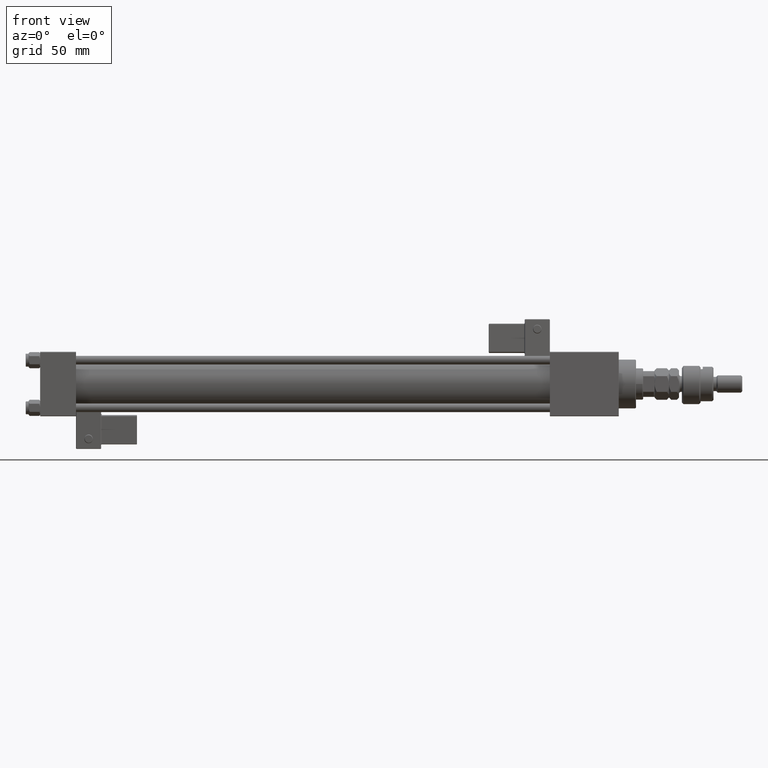
[diagram: clean part render]
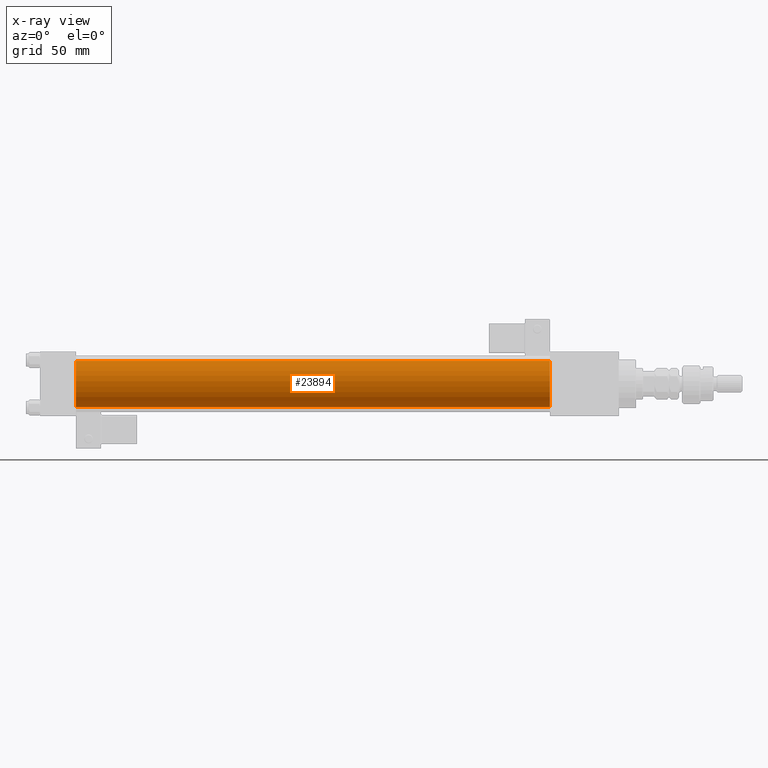
[diagram: x-ray — body ghosted, one internal face saturated and labeled with its STEP entity id]
A machine part, front view, then the same camera in x-ray: the body is ghosted and one INTERNAL B-rep face — a face not visible from any outside direction — is saturated and labeled: STEP entity #23894.
In plain terms, the highlighted cylindrical surface (edge-blend (fillet) strip) has radius 16 mm, axis along (-1, -0, -0).
Its self-contained STEP definition (entity closure, byte-faithful):
#531 = DIRECTION ( 'NONE',  ( 0.000000000000000000, 0.000000000000000000, 1.000000000000000000 ) ) ;
#1144 = DIRECTION ( 'NONE',  ( -1.000000000000000000, -0.000000000000000000, -0.000000000000000000 ) ) ;
#1235 = ORIENTED_EDGE ( 'NONE', *, *, #48572, .F. ) ;
#5089 = ORIENTED_EDGE ( 'NONE', *, *, #45586, .T. ) ;
#5132 = CARTESIAN_POINT ( 'NONE',  ( 355.0000000000000568, -6.426503353294456087E-16, -16.00000000000000000 ) ) ;
#6620 = DIRECTION ( 'NONE',  ( 1.000000000000000000, 0.000000000000000000, 0.000000000000000000 ) ) ;
#6839 = CARTESIAN_POINT ( 'NONE',  ( 355.0000000000000568, -2.602085213965210642E-15, 16.00000000000000000 ) ) ;
#9233 = CYLINDRICAL_SURFACE ( 'NONE', #36325, 16.00000000000000000 ) ;
#9393 = VECTOR ( 'NONE', #1144, 1000.000000000000000 ) ;
#15596 = CIRCLE ( 'NONE', #26350, 16.00000000000000000 ) ;
#18851 = AXIS2_PLACEMENT_3D ( 'NONE', #19266, #48977, #27151 ) ;
#19266 = CARTESIAN_POINT ( 'NONE',  ( 355.0000000000000568, -2.602085213965210642E-15, 0.000000000000000000 ) ) ;
#22097 = FACE_OUTER_BOUND ( 'NONE', #46968, .T. ) ;
#23894 = ADVANCED_FACE ( 'NONE', ( #22097 ), #9233, .F. ) ;
#24000 = CARTESIAN_POINT ( 'NONE',  ( 25.00000000000000000, -2.602085213965210642E-15, 16.00000000000000000 ) ) ;
#24158 = VERTEX_POINT ( 'NONE', #32867 ) ;
#25153 = VERTEX_POINT ( 'NONE', #28165 ) ;
#26350 = AXIS2_PLACEMENT_3D ( 'NONE', #49752, #6620, #40806 ) ;
#27151 = DIRECTION ( 'NONE',  ( 0.000000000000000000, 0.000000000000000000, -1.000000000000000000 ) ) ;
#27884 = DIRECTION ( 'NONE',  ( -1.000000000000000000, -0.000000000000000000, -0.000000000000000000 ) ) ;
#28165 = CARTESIAN_POINT ( 'NONE',  ( 355.0000000000000568, -2.602085213965210642E-15, 16.00000000000000000 ) ) ;
#29698 = ORIENTED_EDGE ( 'NONE', *, *, #34075, .F. ) ;
#32867 = CARTESIAN_POINT ( 'NONE',  ( 25.00000000000000000, -6.426503353294456087E-16, -16.00000000000000000 ) ) ;
#34075 = EDGE_CURVE ( 'NONE', #25153, #52870, #44396, .T. ) ;
#34723 = DIRECTION ( 'NONE',  ( -1.000000000000000000, -0.000000000000000000, -0.000000000000000000 ) ) ;
#35239 = VERTEX_POINT ( 'NONE', #5132 ) ;
#36306 = EDGE_CURVE ( 'NONE', #25153, #35239, #44778, .T. ) ;
#36325 = AXIS2_PLACEMENT_3D ( 'NONE', #38920, #34723, #531 ) ;
#38920 = CARTESIAN_POINT ( 'NONE',  ( 355.0000000000000568, -2.602085213965210642E-15, 0.000000000000000000 ) ) ;
#39477 = VECTOR ( 'NONE', #27884, 1000.000000000000000 ) ;
#40806 = DIRECTION ( 'NONE',  ( 0.000000000000000000, 0.000000000000000000, -1.000000000000000000 ) ) ;
#44396 = LINE ( 'NONE', #6839, #39477 ) ;
#44778 = CIRCLE ( 'NONE', #18851, 16.00000000000000000 ) ;
#45586 = EDGE_CURVE ( 'NONE', #35239, #24158, #52160, .T. ) ;
#46968 = EDGE_LOOP ( 'NONE', ( #48090, #5089, #1235, #29698 ) ) ;
#47372 = CARTESIAN_POINT ( 'NONE',  ( 355.0000000000000568, -6.426503353294456087E-16, -16.00000000000000000 ) ) ;
#48090 = ORIENTED_EDGE ( 'NONE', *, *, #36306, .T. ) ;
#48572 = EDGE_CURVE ( 'NONE', #52870, #24158, #15596, .T. ) ;
#48977 = DIRECTION ( 'NONE',  ( 1.000000000000000000, 0.000000000000000000, 0.000000000000000000 ) ) ;
#49752 = CARTESIAN_POINT ( 'NONE',  ( 25.00000000000000000, -2.602085213965210642E-15, 0.000000000000000000 ) ) ;
#52160 = LINE ( 'NONE', #47372, #9393 ) ;
#52870 = VERTEX_POINT ( 'NONE', #24000 ) ;